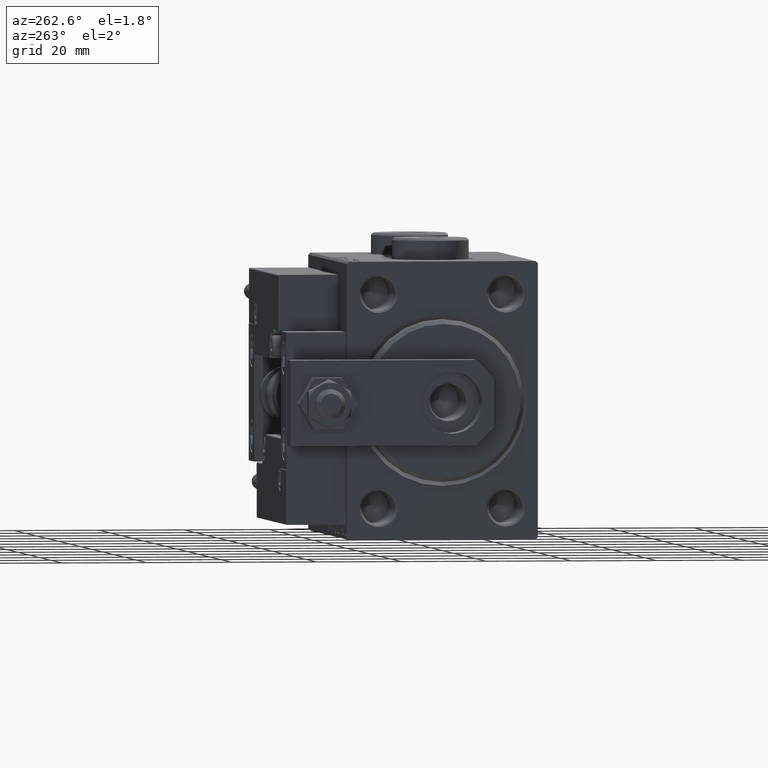
[diagram: clean part render]
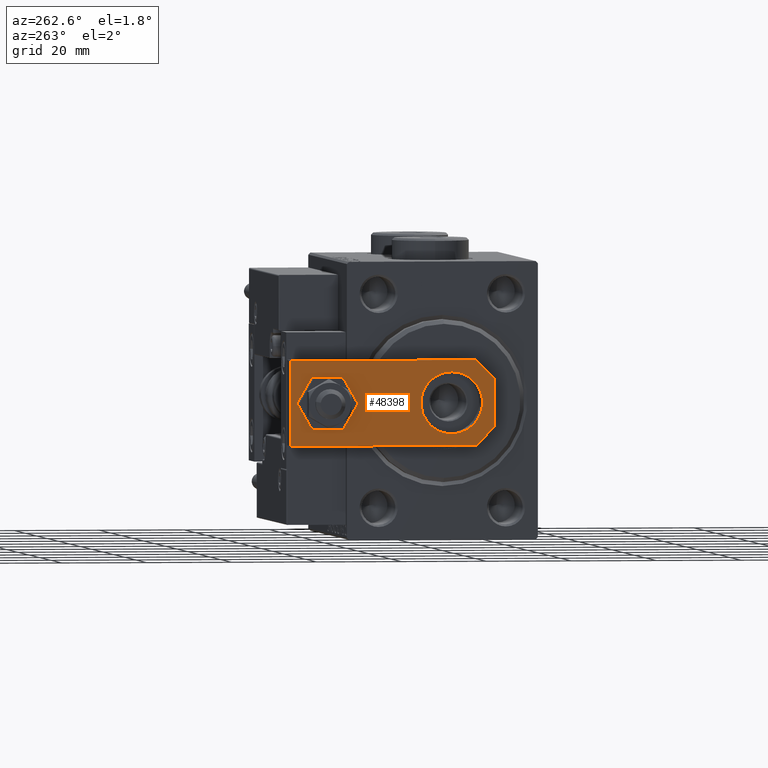
[diagram: same view with one face highlighted and labeled with its STEP entity id]
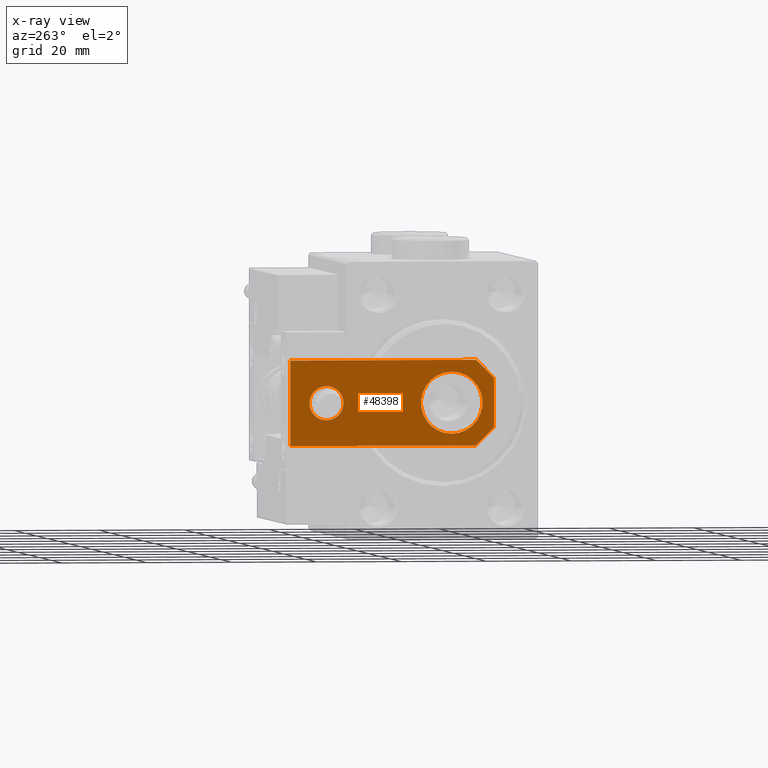
[diagram: x-ray of the same camera — body ghosted, the highlighted face saturated]
A machine part, auxiliary view. The second image highlights one B-rep face of the part: STEP entity #48398.
The next image is the same camera in x-ray: the body ghosted, the highlighted face saturated — about 0% of this face is hidden behind the body in this view.
In plain terms, the highlighted planar face has unit normal (-1, -0, 0).
Its self-contained STEP definition (entity closure, byte-faithful):
#590 = CARTESIAN_POINT ( 'NONE',  ( -5.759999999999997122, 0.000000000000000000, 6.000000000000000000 ) ) ;
#1380 = ORIENTED_EDGE ( 'NONE', *, *, #34570, .F. ) ;
#1894 = DIRECTION ( 'NONE',  ( 1.000000000000000000, 0.000000000000000000, 0.000000000000000000 ) ) ;
#2404 = CARTESIAN_POINT ( 'NONE',  ( -10.00000000000000000, 48.00000000000000000, 6.000000000000000000 ) ) ;
#3554 = VECTOR ( 'NONE', #10287, 1000.000000000000000 ) ;
#3560 = CARTESIAN_POINT ( 'NONE',  ( 2.879999999999984350, -2.879999999999999005, 6.000000000000000000 ) ) ;
#5219 = ORIENTED_EDGE ( 'NONE', *, *, #40506, .F. ) ;
#5297 = CARTESIAN_POINT ( 'NONE',  ( -4.000000000000000888, 39.50000000000000000, 6.000000000000000000 ) ) ;
#5574 = DIRECTION ( 'NONE',  ( 1.000000000000000000, 0.000000000000000000, 0.000000000000000000 ) ) ;
#6990 = DIRECTION ( 'NONE',  ( 1.000000000000000000, 0.000000000000000000, 0.000000000000000000 ) ) ;
#7236 = CARTESIAN_POINT ( 'NONE',  ( 5.759999999999998010, 0.000000000000000000, 6.000000000000000000 ) ) ;
#8019 = ORIENTED_EDGE ( 'NONE', *, *, #12200, .T. ) ;
#9193 = CARTESIAN_POINT ( 'NONE',  ( 10.00000000000000533, 0.000000000000000000, 6.000000000000000000 ) ) ;
#9352 = DIRECTION ( 'NONE',  ( 0.000000000000000000, 0.000000000000000000, 1.000000000000000000 ) ) ;
#9594 = EDGE_LOOP ( 'NONE', ( #5219, #39396 ) ) ;
#9710 = ORIENTED_EDGE ( 'NONE', *, *, #35691, .T. ) ;
#10287 = DIRECTION ( 'NONE',  ( 1.000000000000000000, 0.000000000000000000, 0.000000000000000000 ) ) ;
#10411 = DIRECTION ( 'NONE',  ( 0.7071067811865464625, -0.7071067811865486830, 0.000000000000000000 ) ) ;
#10652 = VECTOR ( 'NONE', #25405, 1000.000000000000000 ) ;
#11007 = DIRECTION ( 'NONE',  ( -0.000000000000000000, 0.000000000000000000, 1.000000000000000000 ) ) ;
#11128 = LINE ( 'NONE', #27327, #39960 ) ;
#11242 = CARTESIAN_POINT ( 'NONE',  ( 10.00000000000000178, 48.00000000000000000, 6.000000000000000000 ) ) ;
#12200 = EDGE_CURVE ( 'NONE', #27100, #12627, #18990, .T. ) ;
#12627 = VERTEX_POINT ( 'NONE', #52314 ) ;
#13641 = VECTOR ( 'NONE', #10411, 999.9999999999998863 ) ;
#14225 = FACE_OUTER_BOUND ( 'NONE', #15732, .T. ) ;
#14460 = LINE ( 'NONE', #11242, #49251 ) ;
#15118 = ORIENTED_EDGE ( 'NONE', *, *, #47052, .T. ) ;
#15732 = EDGE_LOOP ( 'NONE', ( #16608, #51630, #15118, #8019, #27266, #9710 ) ) ;
#16608 = ORIENTED_EDGE ( 'NONE', *, *, #37592, .T. ) ;
#16754 = VERTEX_POINT ( 'NONE', #39606 ) ;
#17855 = CIRCLE ( 'NONE', #42437, 7.250000000000000000 ) ;
#18059 = VECTOR ( 'NONE', #39970, 1000.000000000000114 ) ;
#18207 = FACE_BOUND ( 'NONE', #43026, .T. ) ;
#18464 = EDGE_CURVE ( 'NONE', #12627, #47953, #45617, .T. ) ;
#18549 = ORIENTED_EDGE ( 'NONE', *, *, #33768, .F. ) ;
#18990 = LINE ( 'NONE', #3560, #18059 ) ;
#19052 = VERTEX_POINT ( 'NONE', #45745 ) ;
#21188 = AXIS2_PLACEMENT_3D ( 'NONE', #42886, #50872, #6990 ) ;
#22740 = VERTEX_POINT ( 'NONE', #41934 ) ;
#23019 = LINE ( 'NONE', #46706, #3554 ) ;
#24677 = CIRCLE ( 'NONE', #42518, 4.000000000000000888 ) ;
#24876 = AXIS2_PLACEMENT_3D ( 'NONE', #39428, #11007, #35172 ) ;
#25405 = DIRECTION ( 'NONE',  ( -7.228014483236695816E-17, 1.000000000000000000, 0.000000000000000000 ) ) ;
#27100 = VERTEX_POINT ( 'NONE', #7236 ) ;
#27203 = FACE_BOUND ( 'NONE', #9594, .T. ) ;
#27266 = ORIENTED_EDGE ( 'NONE', *, *, #18464, .T. ) ;
#27327 = CARTESIAN_POINT ( 'NONE',  ( -10.00000000000000000, 48.00000000000000000, 6.000000000000000000 ) ) ;
#30527 = CARTESIAN_POINT ( 'NONE',  ( -9.629649721936179265E-32, 10.00000000000000178, 6.000000000000000000 ) ) ;
#30674 = PLANE ( 'NONE',  #24876 ) ;
#30765 = CARTESIAN_POINT ( 'NONE',  ( -10.00000000000000533, 4.240000000000021529, 6.000000000000000000 ) ) ;
#30899 = VERTEX_POINT ( 'NONE', #30765 ) ;
#33196 = CARTESIAN_POINT ( 'NONE',  ( -1.432611055310774642E-16, 39.50000000000000000, 6.000000000000000000 ) ) ;
#33721 = VERTEX_POINT ( 'NONE', #5297 ) ;
#33768 = EDGE_CURVE ( 'NONE', #33721, #16754, #24677, .T. ) ;
#34570 = EDGE_CURVE ( 'NONE', #16754, #33721, #38138, .T. ) ;
#34928 = VERTEX_POINT ( 'NONE', #590 ) ;
#35172 = DIRECTION ( 'NONE',  ( 1.000000000000000000, 0.000000000000000000, 0.000000000000000000 ) ) ;
#35367 = EDGE_CURVE ( 'NONE', #22740, #19052, #17855, .T. ) ;
#35691 = EDGE_CURVE ( 'NONE', #47953, #45712, #14460, .T. ) ;
#37035 = EDGE_CURVE ( 'NONE', #30899, #34928, #50823, .T. ) ;
#37592 = EDGE_CURVE ( 'NONE', #45712, #30899, #11128, .T. ) ;
#37722 = DIRECTION ( 'NONE',  ( 0.000000000000000000, 0.000000000000000000, 1.000000000000000000 ) ) ;
#37969 = DIRECTION ( 'NONE',  ( 0.000000000000000000, 0.000000000000000000, 1.000000000000000000 ) ) ;
#38138 = CIRCLE ( 'NONE', #41571, 4.000000000000000888 ) ;
#39396 = ORIENTED_EDGE ( 'NONE', *, *, #35367, .F. ) ;
#39428 = CARTESIAN_POINT ( 'NONE',  ( 0.000000000000000000, 0.000000000000000000, 6.000000000000000000 ) ) ;
#39606 = CARTESIAN_POINT ( 'NONE',  ( 4.000000000000000888, 39.50000000000000000, 6.000000000000000000 ) ) ;
#39681 = DIRECTION ( 'NONE',  ( -1.000000000000000000, 0.000000000000000000, 0.000000000000000000 ) ) ;
#39960 = VECTOR ( 'NONE', #43553, 1000.000000000000000 ) ;
#39970 = DIRECTION ( 'NONE',  ( 0.7071067811865492381, 0.7071067811865457964, -0.000000000000000000 ) ) ;
#40506 = EDGE_CURVE ( 'NONE', #19052, #22740, #45802, .T. ) ;
#40948 = CARTESIAN_POINT ( 'NONE',  ( 10.00000000000000178, 48.00000000000000000, 6.000000000000000000 ) ) ;
#41571 = AXIS2_PLACEMENT_3D ( 'NONE', #41775, #9352, #1894 ) ;
#41775 = CARTESIAN_POINT ( 'NONE',  ( -1.432611055310774642E-16, 39.50000000000000000, 6.000000000000000000 ) ) ;
#41934 = CARTESIAN_POINT ( 'NONE',  ( 7.250000000000000000, 10.00000000000000355, 6.000000000000000000 ) ) ;
#42437 = AXIS2_PLACEMENT_3D ( 'NONE', #30527, #37722, #5574 ) ;
#42518 = AXIS2_PLACEMENT_3D ( 'NONE', #33196, #37969, #49436 ) ;
#42886 = CARTESIAN_POINT ( 'NONE',  ( -9.629649721936179265E-32, 10.00000000000000178, 6.000000000000000000 ) ) ;
#43026 = EDGE_LOOP ( 'NONE', ( #18549, #1380 ) ) ;
#43553 = DIRECTION ( 'NONE',  ( -1.084202172485504434E-16, -1.000000000000000000, 0.000000000000000000 ) ) ;
#45617 = LINE ( 'NONE', #9193, #10652 ) ;
#45712 = VERTEX_POINT ( 'NONE', #2404 ) ;
#45745 = CARTESIAN_POINT ( 'NONE',  ( -7.250000000000000000, 10.00000000000000178, 6.000000000000000000 ) ) ;
#45802 = CIRCLE ( 'NONE', #21188, 7.250000000000000000 ) ;
#46706 = CARTESIAN_POINT ( 'NONE',  ( -10.00000000000000533, 0.000000000000000000, 6.000000000000000000 ) ) ;
#46834 = CARTESIAN_POINT ( 'NONE',  ( -2.880000000000006999, -2.879999999999998561, 6.000000000000000000 ) ) ;
#47052 = EDGE_CURVE ( 'NONE', #34928, #27100, #23019, .T. ) ;
#47953 = VERTEX_POINT ( 'NONE', #40948 ) ;
#48398 = ADVANCED_FACE ( 'NONE', ( #18207, #14225, #27203 ), #30674, .T. ) ;
#49251 = VECTOR ( 'NONE', #39681, 1000.000000000000000 ) ;
#49436 = DIRECTION ( 'NONE',  ( 1.000000000000000000, 0.000000000000000000, 0.000000000000000000 ) ) ;
#50823 = LINE ( 'NONE', #46834, #13641 ) ;
#50872 = DIRECTION ( 'NONE',  ( 0.000000000000000000, 0.000000000000000000, 1.000000000000000000 ) ) ;
#51630 = ORIENTED_EDGE ( 'NONE', *, *, #37035, .T. ) ;
#52314 = CARTESIAN_POINT ( 'NONE',  ( 10.00000000000000533, 4.239999999999986890, 6.000000000000000000 ) ) ;